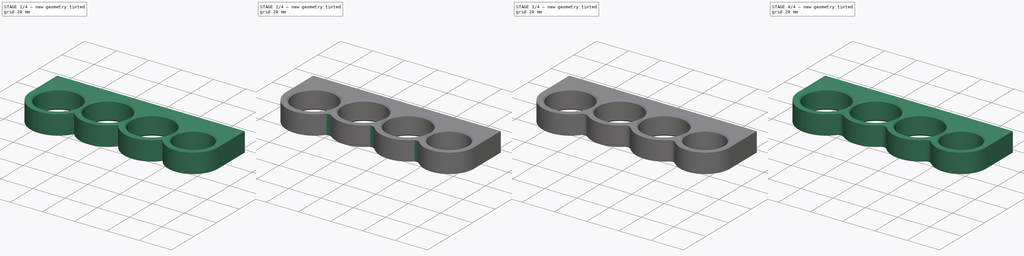
[diagram: build sequence overview — one tinted view per stage of 4, left to right]
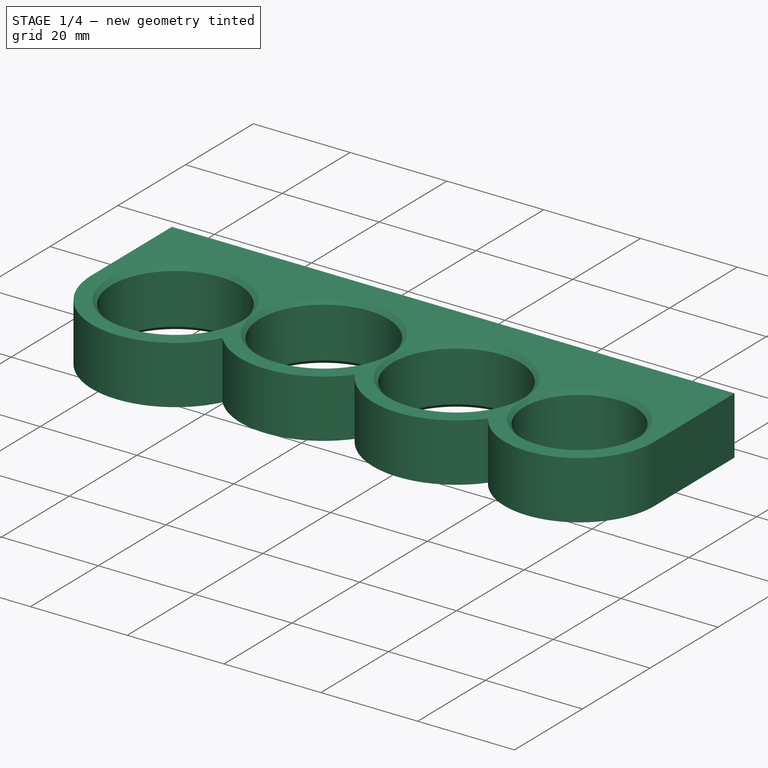
[diagram: stage 1 of 4 — iso view after this stage's code; geometry added in this stage tinted green]
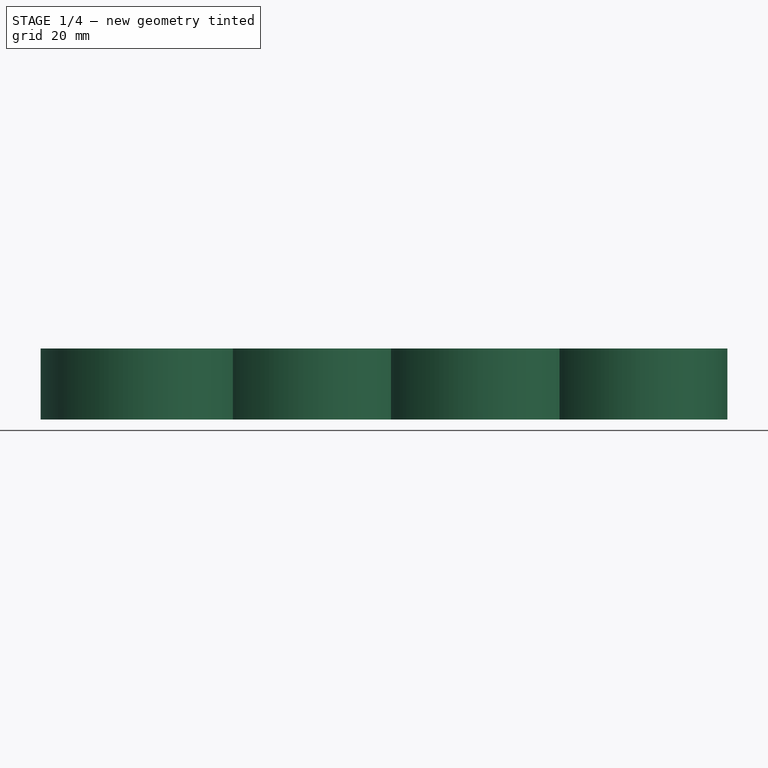
[diagram: stage 1 of 4 — front view after this stage's code; geometry added in this stage tinted green]
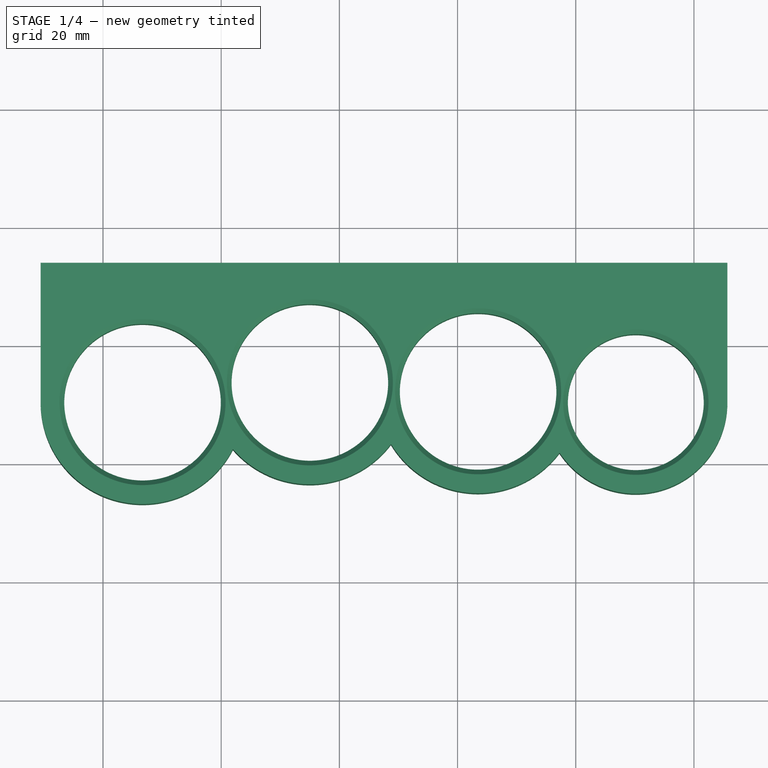
[diagram: stage 1 of 4 — top view after this stage's code; geometry added in this stage tinted green]
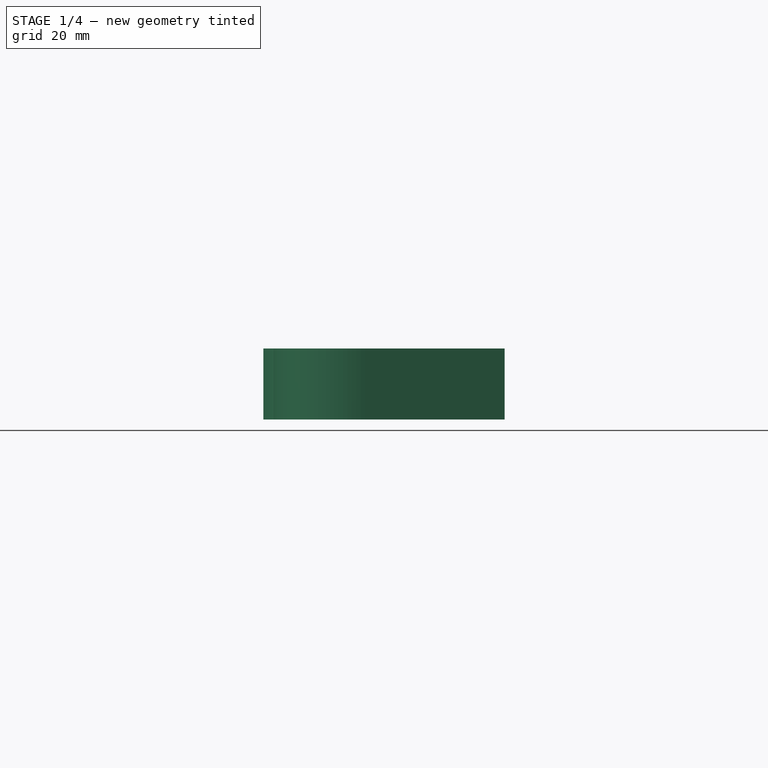
[diagram: stage 1 of 4 — right view after this stage's code; geometry added in this stage tinted green]
FCSTD DOCUMENT  (FreeCAD 0.21R33771 (Git))
Label: Кастет
License: All rights reserved
LicenseURL: https://en.wikipedia.org/wiki/All_rights_reserved
objects: Part::Part2DObjectPython×4, Part::Extrusion×4, Sketcher::SketchObject×1, PartDesign::Pad×1, Part::MultiFuse×1, PartDesign::Chamfer×1, PartDesign::Fillet×1, PartDesign::Body×1, Part::Cut×1
note: 18 computed .brp shape members not serialized (recipe doc carries the construction recipe); baked Part::Feature solids carry a one-line shape summary decoded from their .brp

FEATURE [Sketcher::SketchObject] Sketch
  FullyConstrained = true
  MapMode = 5
  Support = -> [XY_Plane]
  sketch-geometry (33):
    g0: Circle CenterX=26.6878 CenterY=-29.638 CenterZ=0 NormalX=0 NormalY=0 NormalZ=1 AngleXU=0 Radius=13.25
    g1: Circle CenterX=55.005 CenterY=-26.2949 CenterZ=0 NormalX=0 NormalY=0 NormalZ=1 AngleXU=0 Radius=13.25
    g2: Circle CenterX=83.4787 CenterY=-27.8092 CenterZ=0 NormalX=0 NormalY=0 NormalZ=1 AngleXU=0 Radius=13.25
    g3: Circle CenterX=110.166 CenterY=-29.638 CenterZ=0 NormalX=0 NormalY=0 NormalZ=1 AngleXU=0 Radius=11.5
    g4: LineSegment StartX=26.6878 StartY=-29.638 StartZ=0 EndX=55.005 EndY=-26.2949 EndZ=0
    g5: LineSegment StartX=55.005 StartY=-26.2949 StartZ=0 EndX=83.4787 EndY=-27.8092 EndZ=0
    g6: LineSegment StartX=83.4787 StartY=-27.8092 StartZ=0 EndX=110.166 EndY=-29.638 EndZ=0
    g7: GeomPoint X=41.8464 Y=-27.8484 Z=0
    g8: GeomPoint X=39.8464 Y=-28.0845 Z=0
    g9: GeomPoint X=96.6977 Y=-28.7151 Z=0
    g10: GeomPoint X=98.693 Y=-28.8518 Z=0
    g11: Circle CenterX=26.6878 CenterY=-29.638 CenterZ=0 NormalX=0 NormalY=0 NormalZ=1 AngleXU=0 Radius=17.25
    g12: Circle CenterX=55.005 CenterY=-26.2949 CenterZ=0 NormalX=0 NormalY=0 NormalZ=1 AngleXU=0 Radius=17.25
    g13: Circle CenterX=83.4787 CenterY=-27.8092 CenterZ=0 NormalX=0 NormalY=0 NormalZ=1 AngleXU=0 Radius=17.25
    g14: Circle CenterX=110.166 CenterY=-29.638 CenterZ=0 NormalX=0 NormalY=0 NormalZ=1 AngleXU=0 Radius=15.5
    g15: GeomPoint X=110.166 Y=-18.138 Z=0
    g16: GeomPoint X=110.166 Y=-14.138 Z=0
    g17: GeomPoint X=83.4787 Y=-14.5592 Z=0
    g18: GeomPoint X=83.4787 Y=-10.5592 Z=0
    g19: GeomPoint X=55.005 Y=-13.0449 Z=0
    g20: GeomPoint X=55.005 Y=-9.04493 Z=0
    g21: GeomPoint X=26.6878 Y=-16.388 Z=0
    g22: GeomPoint X=26.6878 Y=-12.388 Z=0
    g23: ArcOfCircle CenterX=26.6878 CenterY=-29.638 CenterZ=0 NormalX=0 NormalY=0 NormalZ=1 AngleXU=0 Radius=17.25 StartAngle=3.14159 EndAngle=5.80275
    g24: ArcOfCircle CenterX=55.005 CenterY=-26.2949 CenterZ=0 NormalX=0 NormalY=0 NormalZ=1 AngleXU=0 Radius=17.25 StartAngle=3.85706 EndAngle=5.6321
    g25: ArcOfCircle CenterX=83.4787 CenterY=-27.8092 CenterZ=0 NormalX=0 NormalY=0 NormalZ=1 AngleXU=0 Radius=17.25 StartAngle=3.68641 EndAngle=5.6366
    g26: ArcOfCircle CenterX=110.166 CenterY=-29.638 CenterZ=0 NormalX=0 NormalY=0 NormalZ=1 AngleXU=0 Radius=15.5 StartAngle=3.72695 EndAngle=6.28319
    g27: LineSegment StartX=9.43779 StartY=-29.638 StartZ=0 EndX=9.43779 EndY=-6.04493 EndZ=0
    g28: LineSegment StartX=9.43779 StartY=-6.04493 StartZ=0 EndX=125.666 EndY=-6.04493 EndZ=0
    g29: LineSegment StartX=125.666 StartY=-6.04493 StartZ=0 EndX=125.666 EndY=-29.638 EndZ=0
    g30: LineSegment StartX=9.43779 StartY=-29.638 StartZ=0 EndX=9.43779 EndY=-6.04493 EndZ=0
    g31: LineSegment StartX=9.43779 StartY=-6.04493 StartZ=0 EndX=125.666 EndY=-6.04493 EndZ=0
    g32: LineSegment StartX=125.666 StartY=-6.04493 StartZ=0 EndX=125.666 EndY=-29.638 EndZ=0
  constraints (75):
    c: Equal(g0,g1)
    c: Equal(g1,g2)
    c: Diameter(g0) = 26.5
    c: Coincident(g4,g0)
    c: Coincident(g4,g1)
    c: Coincident(g4,g5)
    c: Coincident(g5,g2)
    c: Coincident(g5,g6)
    c: Coincident(g6,g3)
    c: PointOnObject(g7,g1)
    c: PointOnObject(g8,g0)
    c: PointOnObject(g8,g4)
    c: PointOnObject(g7,g4)
    c: Diameter(g3) = 23
    c: Horizontal(g0,g3)
    c: PointOnObject(g9,g2)
    c: PointOnObject(g10,g3)
    c: PointOnObject(g10,g6)
    c: PointOnObject(g9,g6)
    c: Block(g0)
    c: Block(g1)
    c: Block(g2)
    c: Coincident(g11,g0)
    c: Coincident(g12,g1)
    c: Coincident(g13,g2)
    c: Coincident(g14,g3)
    c: PointOnObject(g15,g3)
    c: PointOnObject(g16,g14)
    c: PointOnObject(g17,g2)
    c: PointOnObject(g18,g13)
    c: PointOnObject(g19,g1)
    c: PointOnObject(g20,g12)
    c: PointOnObject(g21,g0)
    c: PointOnObject(g22,g11)
    c: Distance(g22,g21) = 4
    c: Distance(g19,g20) = 4
    c: Vertical(g21,g22)
    c: Vertical(g0,g21)
    c: Vertical(g1,g19)
    c: Vertical(g19,g20)
    c: Vertical(g2,g17)
    c: Vertical(g17,g18)
    c: DistanceY(g17,g18) = 4
    c: DistanceY(g15,g16) = 4
    c: Vertical(g3,g15)
    c: Vertical(g16,g15)
    c: Coincident(g23,g0)
    c: PointOnObject(g23,g12)
    c: Coincident(g24,g1)
    c: Coincident(g24,g23)
    c: PointOnObject(g24,g13)
    c: Coincident(g25,g2)
    c: Coincident(g25,g24)
    c: PointOnObject(g25,g14)
    c: Coincident(g26,g3)
    c: Coincident(g26,g25)
    c: Block(g3)
    c: Coincident(g27,g28)
    c: Coincident(g28,g29)
    c: Coincident(g23,g27)
    c: Horizontal(g23,g0)
    c: PointOnObject(g23,g11)
    c: Coincident(g29,g26)
    c: Horizontal(g26,g3)
    c: Vertical(g29)
    c: DistanceY(g20,g28) = 3
    c: Vertical(g27)
    c: Horizontal(g28)
    c: DistanceY(g21,g27) = 10.3431
    c: Tangent(g23,g30) = 1.5708
    c: Coincident(g30,g31)
    c: Coincident(g31,g28)
    c: Horizontal(g31)
    c: Coincident(g31,g32)
    c: Coincident(g32,g26)
FEATURE [PartDesign::Pad] Pad
  Direction = (0,0,1)
  Length = 12
  Length2 = 10
  Profile = -> Sketch
  ReferenceAxis = -> Sketch [N_Axis]
  Type = 0
FEATURE [PartDesign::Chamfer] Chamfer
  Angle = 45
  Base = -> Pad [Edge33,Edge24,Edge30,Edge27,Edge32,Edge23,Edge29,Edge26]
  BaseFeature = -> Pad
  ChamferType = 0
  FlipDirection = false
  Size = 0.8
  Size2 = 1
  SupportTransform = false
  UseAllEdges = false
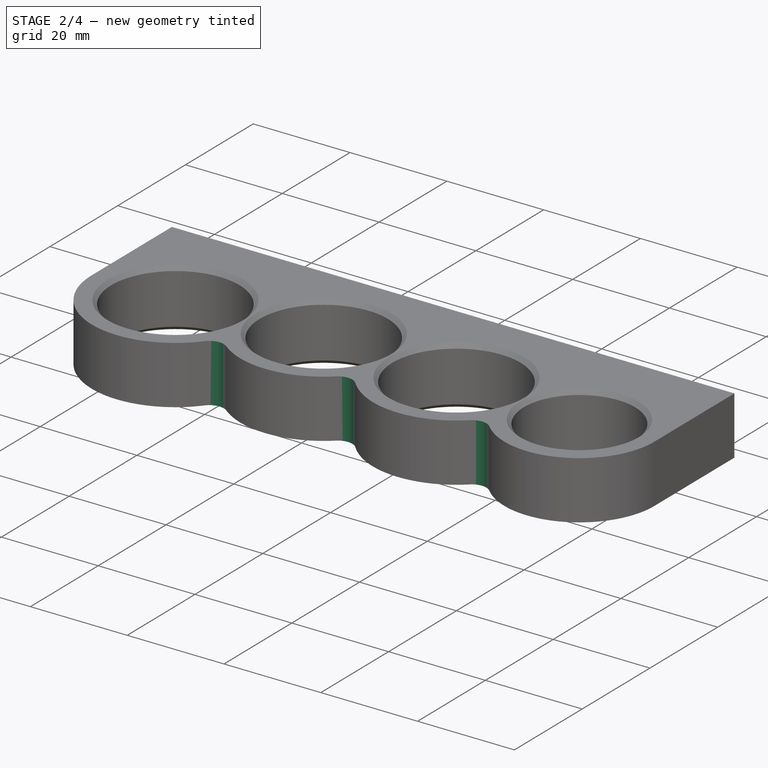
[diagram: stage 2 of 4 — iso view after this stage's code; geometry added in this stage tinted green]
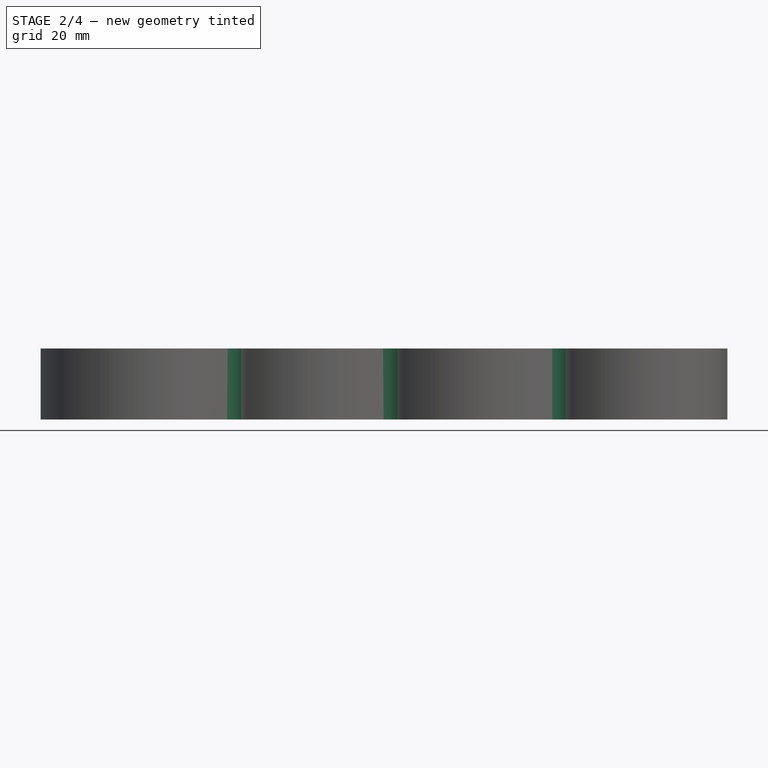
[diagram: stage 2 of 4 — front view after this stage's code; geometry added in this stage tinted green]
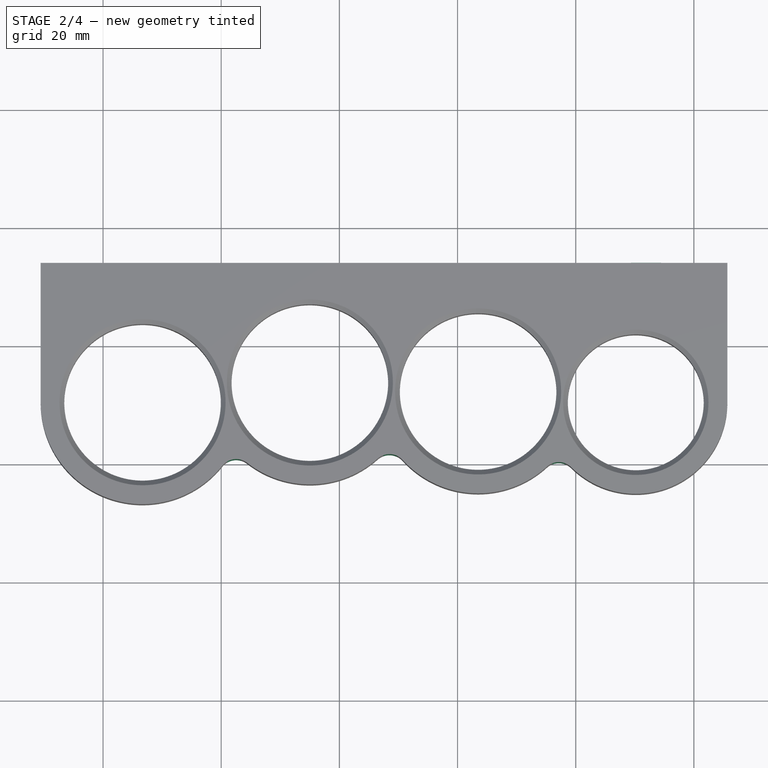
[diagram: stage 2 of 4 — top view after this stage's code; geometry added in this stage tinted green]
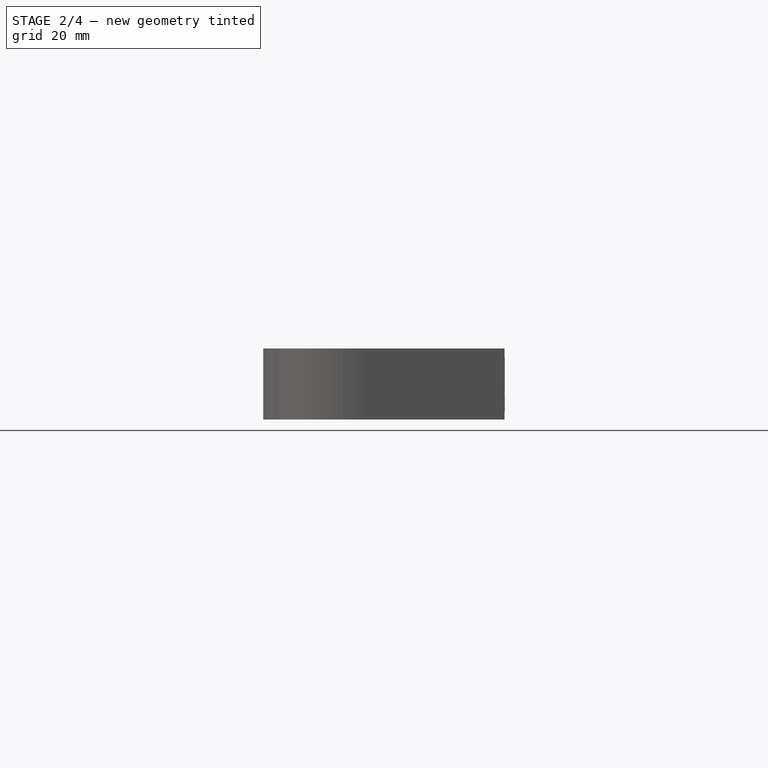
[diagram: stage 2 of 4 — right view after this stage's code; geometry added in this stage tinted green]
FEATURE [Part::Extrusion] Extrude003
  Base = -> ShapeString003
  Dir = (0,1,-3e-16)
  DirMode = 2
  FaceMakerClass = Part::FaceMakerBullseye
  LengthFwd = 1
  LengthRev = 0
  Placement = pos=(0,-1,1) rot=(0,0,1;0rad)
  Solid = false
  Symmetric = false
FEATURE [PartDesign::Fillet] Fillet
  Base = -> Chamfer [Edge33,Edge32,Edge31]
  BaseFeature = -> Chamfer
  Radius = 3
  SupportTransform = false
  UseAllEdges = false
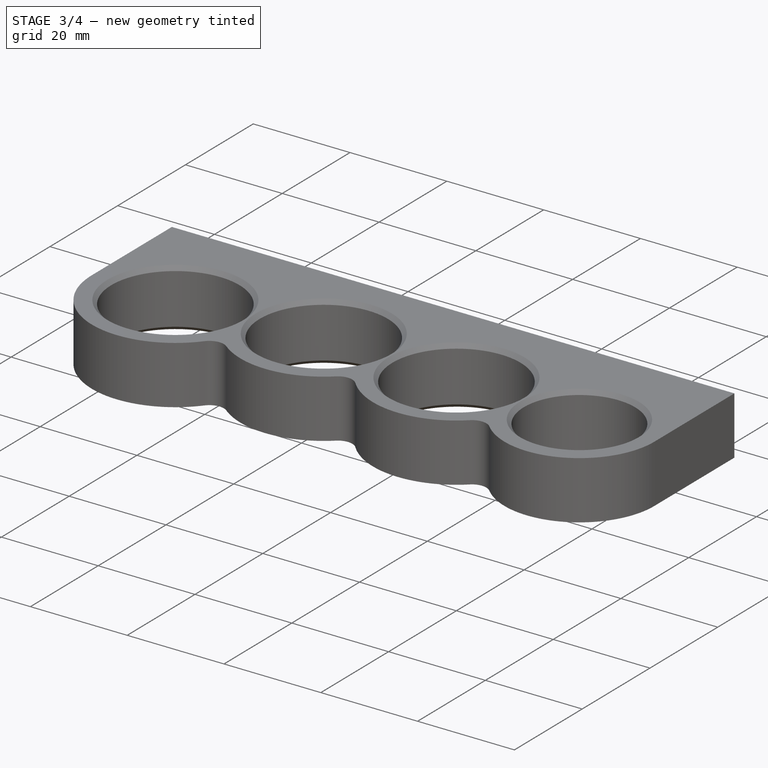
[diagram: stage 3 of 4 — iso view after this stage's code; geometry added in this stage tinted green]
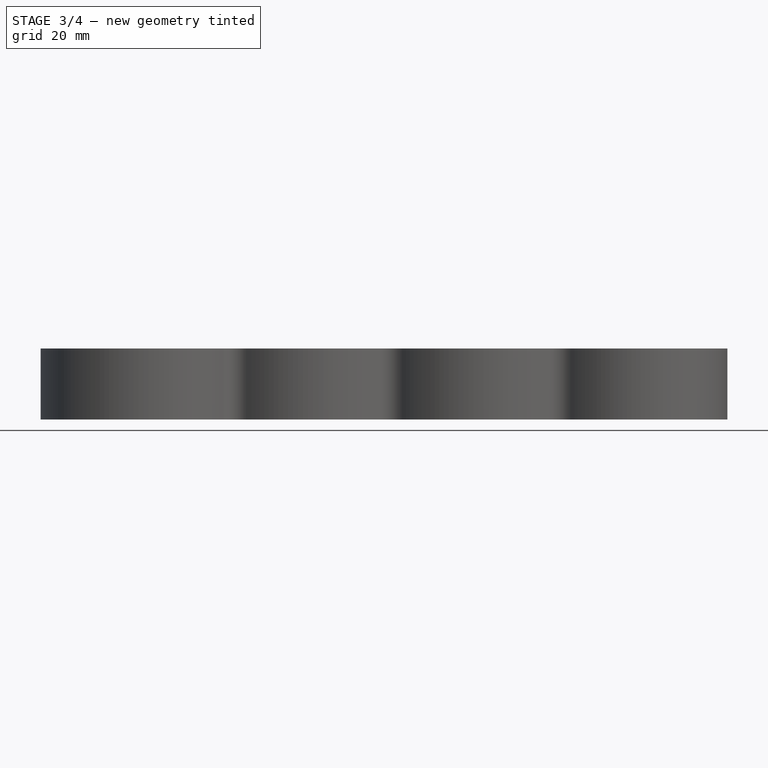
[diagram: stage 3 of 4 — front view after this stage's code; geometry added in this stage tinted green]
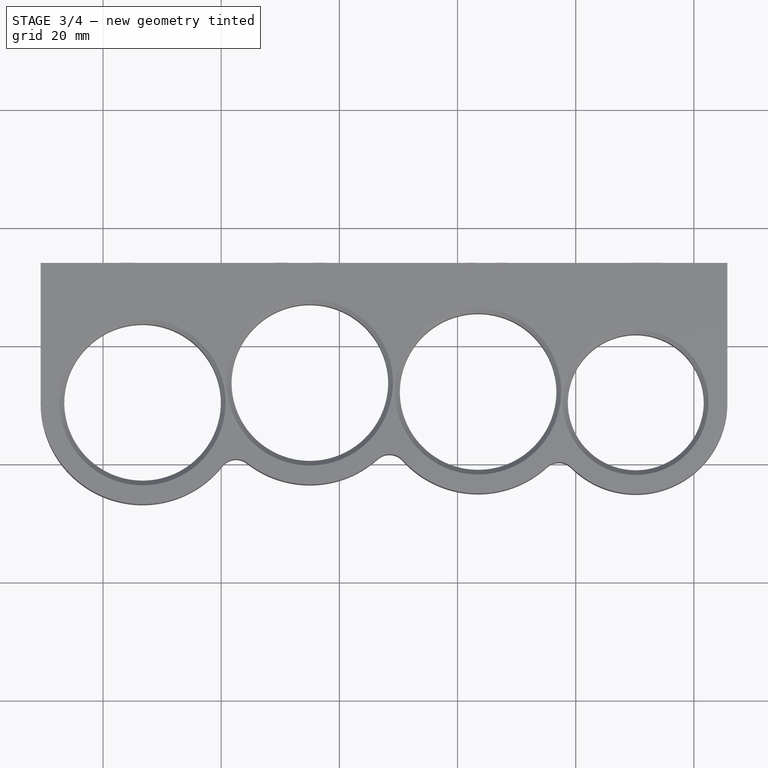
[diagram: stage 3 of 4 — top view after this stage's code; geometry added in this stage tinted green]
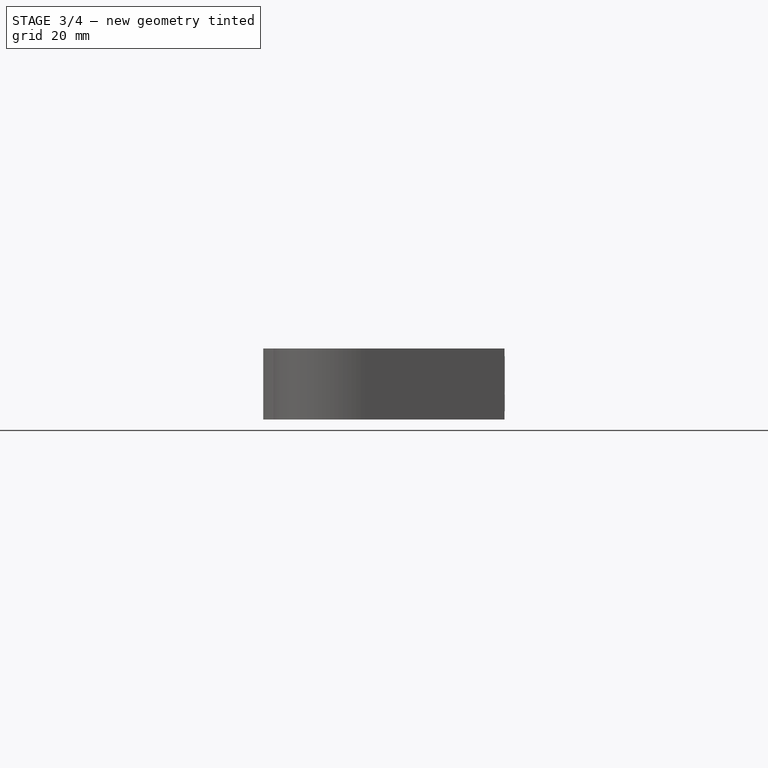
[diagram: stage 3 of 4 — right view after this stage's code; geometry added in this stage tinted green]
FEATURE [Part::Part2DObjectPython] ShapeString  # Draft 2D object (typed FeaturePython)
  FontFile = <userpath>/LTSuperior-Bold.otf
  MakeFace = true
  Placement = pos=(28.5,-6,2) rot=(0,0.707107,0.707107;3.14159rad)
  Size = 3.8
  String = А
  Tracking = 0
FEATURE [Part::Part2DObjectPython] ShapeString001  # Draft 2D object (typed FeaturePython)
  FontFile = <userpath>/LTSuperior-Bold.otf
  MakeFace = true
  Placement = pos=(58.5,-6,1) rot=(0,0.707107,0.707107;3.14159rad)
  Size = 3.8
  String = М
  Tracking = 0
FEATURE [Part::Part2DObjectPython] ShapeString002  # Draft 2D object (typed FeaturePython)
  FontFile = <userpath>/LTSuperior-Bold.otf
  MakeFace = true
  Placement = pos=(89,-6,1) rot=(0,0.707107,0.707107;3.14159rad)
  Size = 3.8
  String = И
  Tracking = 0
FEATURE [Part::Part2DObjectPython] ShapeString003  # Draft 2D object (typed FeaturePython)
  FontFile = <userpath>/LTSuperior-Bold.otf
  MakeFace = true
  Placement = pos=(116.5,-6,2) rot=(0,0.707107,0.707107;3.14159rad)
  Size = 3.5
  String = Д
  Tracking = 0
FEATURE [Part::Extrusion] Extrude
  Base = -> ShapeString
  Dir = (0,1,-2e-16)
  DirMode = 2
  FaceMakerClass = Part::FaceMakerBullseye
  LengthFwd = 1
  LengthRev = 0
  Placement = pos=(0,-1,0.5) rot=(0,0,1;0rad)
  Solid = false
  Symmetric = false
FEATURE [Part::Extrusion] Extrude001
  Base = -> ShapeString001
  Dir = (0,1,-2e-16)
  DirMode = 2
  FaceMakerClass = Part::FaceMakerBullseye
  LengthFwd = 1
  LengthRev = 0
  Placement = pos=(0,-1,1) rot=(0,0,1;0rad)
  Solid = false
  Symmetric = false
FEATURE [Part::Extrusion] Extrude002
  Base = -> ShapeString002
  Dir = (0,1,-3e-16)
  DirMode = 2
  FaceMakerClass = Part::FaceMakerBullseye
  LengthFwd = 1
  LengthRev = 0
  Placement = pos=(0,-1,1) rot=(0,0,1;0rad)
  Solid = false
  Symmetric = false
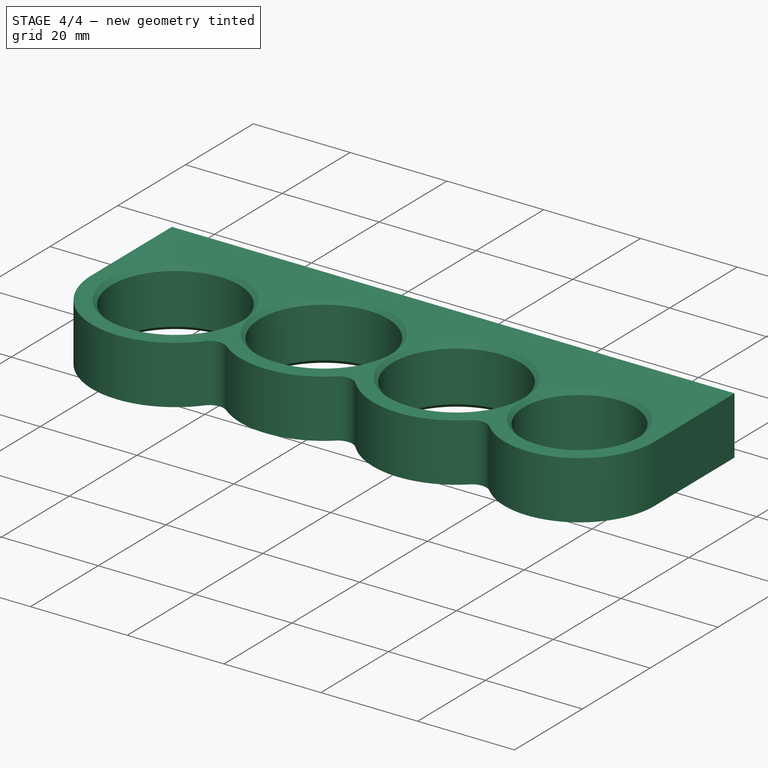
[diagram: stage 4 of 4 — iso view after this stage's code; geometry added in this stage tinted green]
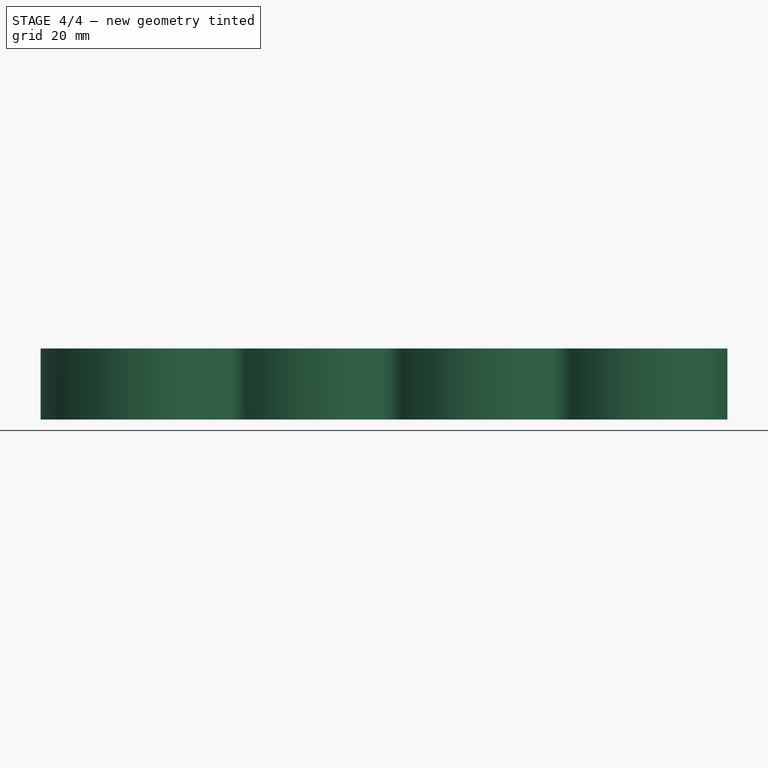
[diagram: stage 4 of 4 — front view after this stage's code; geometry added in this stage tinted green]
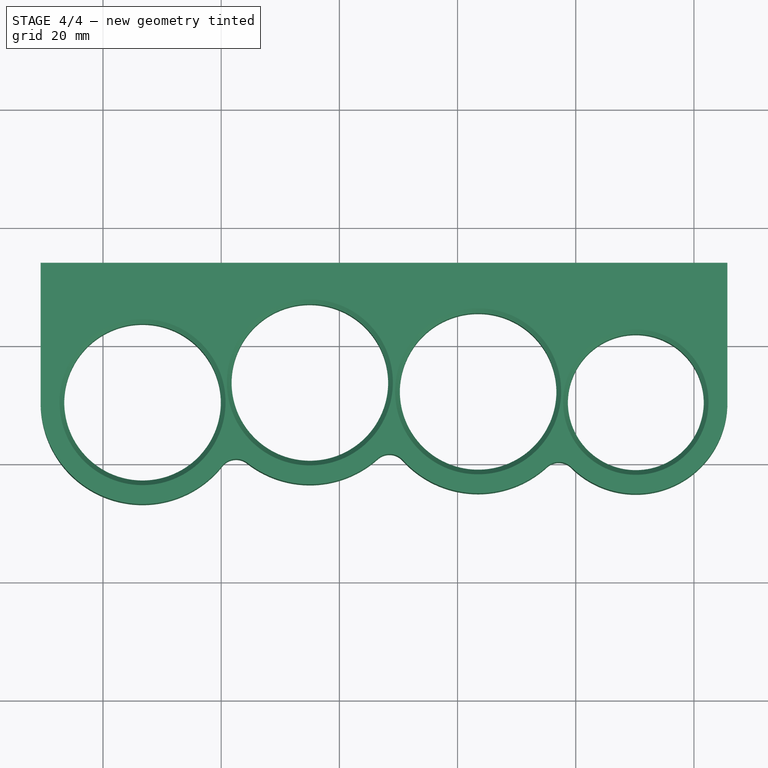
[diagram: stage 4 of 4 — top view after this stage's code; geometry added in this stage tinted green]
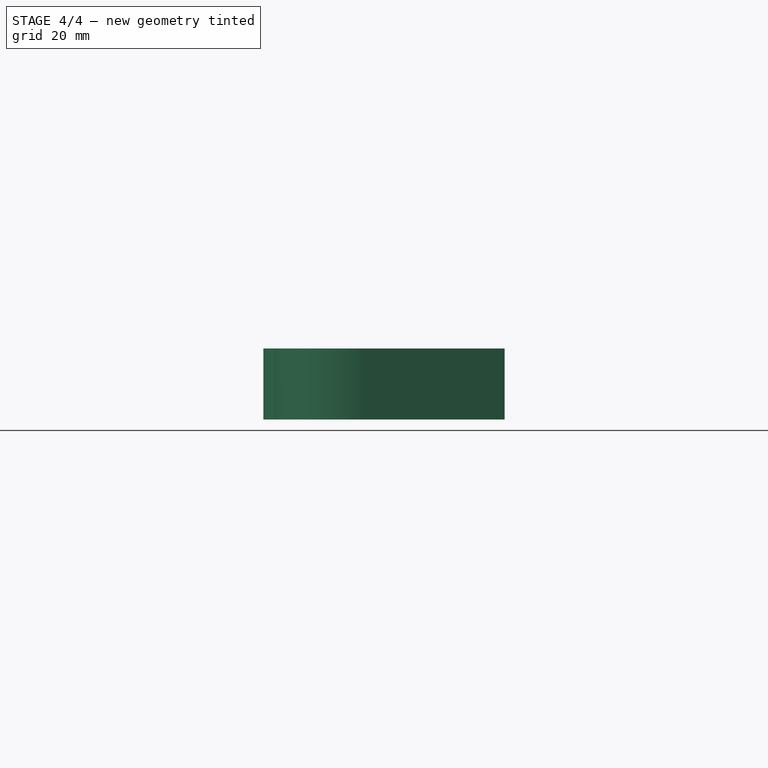
[diagram: stage 4 of 4 — right view after this stage's code; geometry added in this stage tinted green]
FEATURE [Part::MultiFuse] Fusion
  Shapes = -> [Extrude,Extrude001,Extrude002,Extrude003]
FEATURE [PartDesign::Body] Body  label="Тело"
  Group = -> [Sketch,Pad,Chamfer,Fillet]
  Origin = -> Origin
  Tip = -> Fillet
FEATURE [Part::Cut] Cut
  Base = -> Body
  Tool = -> Fusion
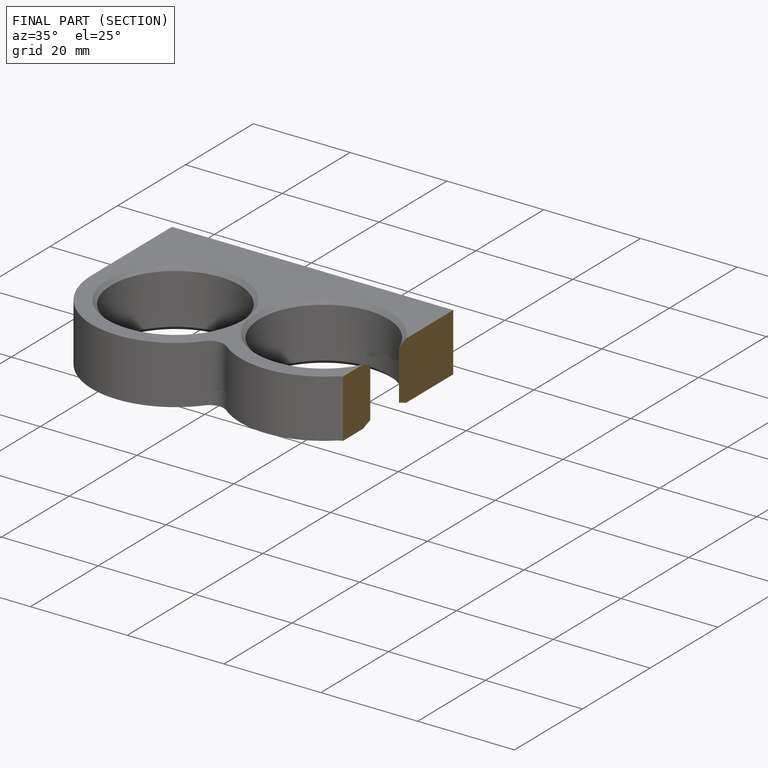
[diagram: finished part — half-section view (interior)]
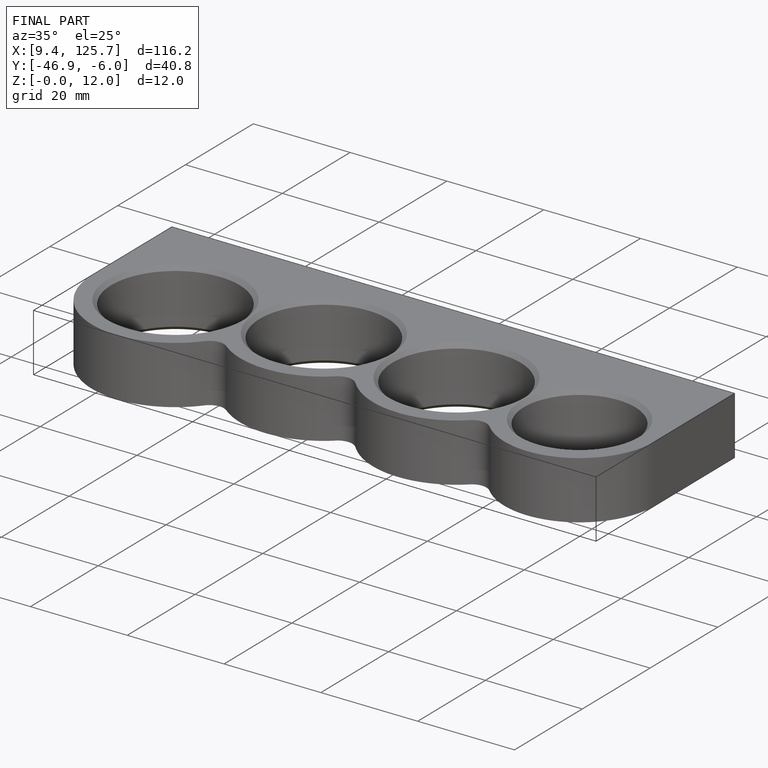
[diagram: finished part — iso view with bounding-box wireframe]
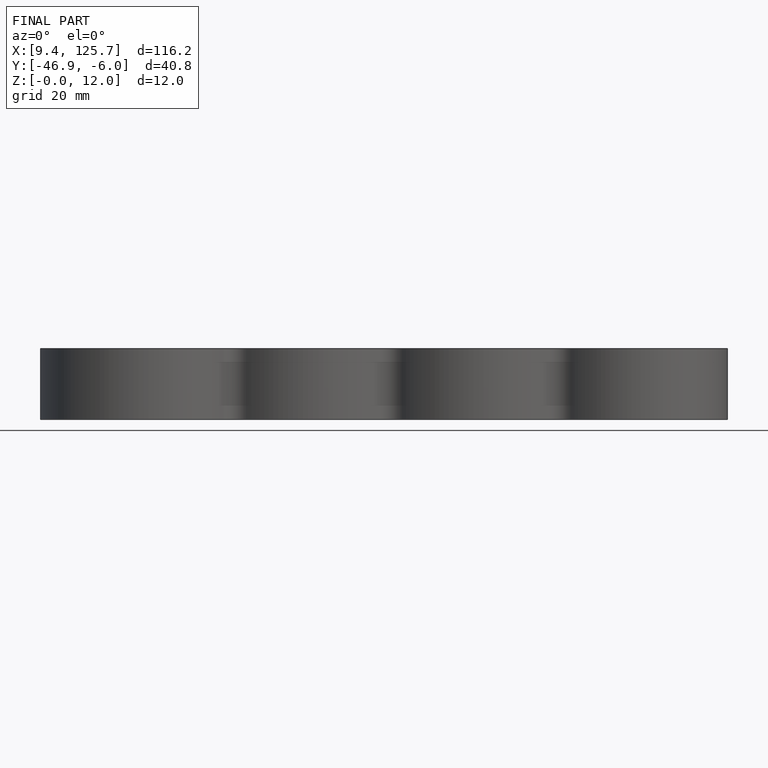
[diagram: finished part — front view with bounding-box wireframe]
